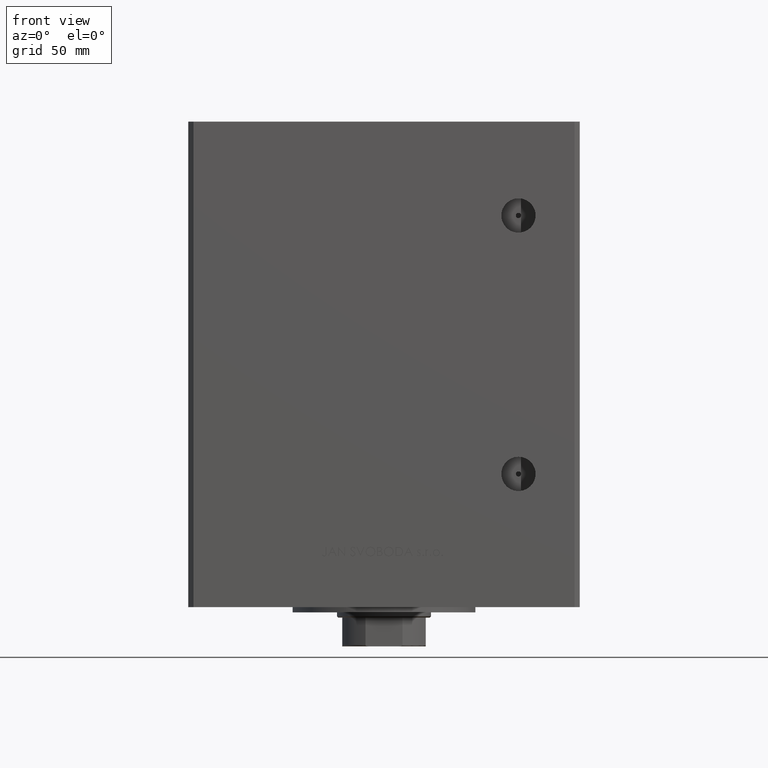
[diagram: clean part render]
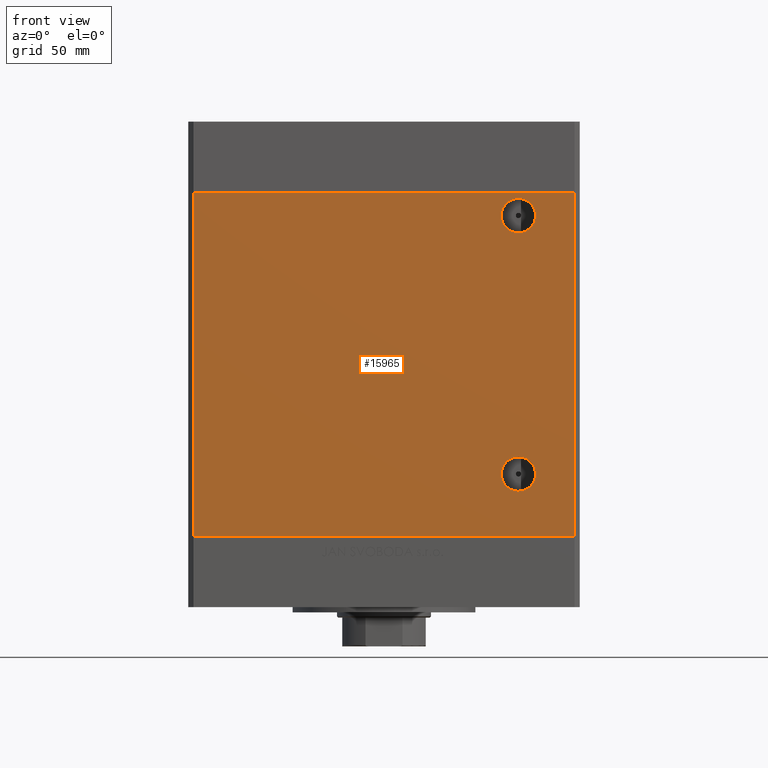
[diagram: same view with one face highlighted and labeled with its STEP entity id]
A machine part, front view. The second image highlights one B-rep face of the part: STEP entity #15965.
In plain terms, the highlighted planar face has unit normal (0, 1, 0).
Its self-contained STEP definition (entity closure, byte-faithful):
#225 = CARTESIAN_POINT ( 'NONE',  ( -72.99999999999998579, -62.50000000000000000, 0.000000000000000000 ) ) ;
#568 = DIRECTION ( 'NONE',  ( 0.000000000000000000, 0.000000000000000000, -1.000000000000000000 ) ) ;
#744 = AXIS2_PLACEMENT_3D ( 'NONE', #29059, #25262, #25507 ) ;
#2006 = DIRECTION ( 'NONE',  ( 0.000000000000000000, 0.000000000000000000, -1.000000000000000000 ) ) ;
#2589 = EDGE_CURVE ( 'NONE', #16258, #22387, #14545, .T. ) ;
#2895 = FACE_BOUND ( 'NONE', #22613, .T. ) ;
#3523 = EDGE_CURVE ( 'NONE', #20284, #35627, #42421, .T. ) ;
#3588 = ORIENTED_EDGE ( 'NONE', *, *, #50003, .F. ) ;
#4796 = ORIENTED_EDGE ( 'NONE', *, *, #19103, .T. ) ;
#5425 = CARTESIAN_POINT ( 'NONE',  ( 51.49999999999998579, -62.50000000000000000, 30.57999999999998764 ) ) ;
#7691 = EDGE_CURVE ( 'NONE', #43240, #35627, #31557, .T. ) ;
#8179 = DIRECTION ( 'NONE',  ( 0.000000000000000000, 0.000000000000000000, -1.000000000000000000 ) ) ;
#8389 = DIRECTION ( 'NONE',  ( -0.000000000000000000, -0.000000000000000000, -1.000000000000000000 ) ) ;
#8433 = CARTESIAN_POINT ( 'NONE',  ( 72.99999999999998579, -62.50000000000000000, 132.0000000000000000 ) ) ;
#8459 = LINE ( 'NONE', #20174, #36087 ) ;
#9283 = CARTESIAN_POINT ( 'NONE',  ( -72.99999999999998579, -62.50000000000000000, 0.000000000000000000 ) ) ;
#10025 = FACE_OUTER_BOUND ( 'NONE', #12039, .T. ) ;
#10549 = CARTESIAN_POINT ( 'NONE',  ( -72.99999999999998579, -62.50000000000000000, 132.0000000000000000 ) ) ;
#12039 = EDGE_LOOP ( 'NONE', ( #17403, #19470, #17461, #4796 ) ) ;
#12224 = CARTESIAN_POINT ( 'NONE',  ( 72.99999999999998579, -62.50000000000000000, 132.0000000000000000 ) ) ;
#12639 = EDGE_CURVE ( 'NONE', #22387, #16258, #25314, .T. ) ;
#14545 = CIRCLE ( 'NONE', #49454, 6.580000000000002736 ) ;
#15965 = ADVANCED_FACE ( 'NONE', ( #2895, #10025, #32931 ), #48424, .F. ) ;
#16194 = EDGE_CURVE ( 'NONE', #44417, #43240, #8459, .T. ) ;
#16258 = VERTEX_POINT ( 'NONE', #17859 ) ;
#17403 = ORIENTED_EDGE ( 'NONE', *, *, #3523, .T. ) ;
#17461 = ORIENTED_EDGE ( 'NONE', *, *, #16194, .F. ) ;
#17859 = CARTESIAN_POINT ( 'NONE',  ( 51.49999999999997158, -62.50000000000000000, 129.5800000000000125 ) ) ;
#18263 = VERTEX_POINT ( 'NONE', #41004 ) ;
#18416 = DIRECTION ( 'NONE',  ( 0.000000000000000000, -0.000000000000000000, 1.000000000000000000 ) ) ;
#18774 = CARTESIAN_POINT ( 'NONE',  ( 72.99999999999998579, -62.50000000000000000, 0.000000000000000000 ) ) ;
#19103 = EDGE_CURVE ( 'NONE', #44417, #20284, #24828, .T. ) ;
#19303 = EDGE_CURVE ( 'NONE', #18263, #45900, #29531, .T. ) ;
#19470 = ORIENTED_EDGE ( 'NONE', *, *, #7691, .F. ) ;
#19642 = DIRECTION ( 'NONE',  ( -0.000000000000000000, 1.000000000000000000, -0.000000000000000000 ) ) ;
#20097 = ORIENTED_EDGE ( 'NONE', *, *, #2589, .T. ) ;
#20174 = CARTESIAN_POINT ( 'NONE',  ( -72.99999999999998579, -62.50000000000000000, 132.0000000000000000 ) ) ;
#20284 = VERTEX_POINT ( 'NONE', #225 ) ;
#21852 = CIRCLE ( 'NONE', #744, 6.579999999999995630 ) ;
#22387 = VERTEX_POINT ( 'NONE', #47516 ) ;
#22613 = EDGE_LOOP ( 'NONE', ( #31490, #3588 ) ) ;
#23103 = DIRECTION ( 'NONE',  ( 1.000000000000000000, 0.000000000000000000, 0.000000000000000000 ) ) ;
#23461 = DIRECTION ( 'NONE',  ( 0.000000000000000000, -1.000000000000000000, 0.000000000000000000 ) ) ;
#23986 = DIRECTION ( 'NONE',  ( 1.000000000000000000, 0.000000000000000000, 0.000000000000000000 ) ) ;
#24828 = LINE ( 'NONE', #39337, #33624 ) ;
#25262 = DIRECTION ( 'NONE',  ( 0.000000000000000000, -1.000000000000000000, 0.000000000000000000 ) ) ;
#25314 = CIRCLE ( 'NONE', #30986, 6.580000000000002736 ) ;
#25505 = AXIS2_PLACEMENT_3D ( 'NONE', #10549, #25548, #18416 ) ;
#25507 = DIRECTION ( 'NONE',  ( 0.000000000000000000, 0.000000000000000000, -1.000000000000000000 ) ) ;
#25548 = DIRECTION ( 'NONE',  ( 0.000000000000000000, 1.000000000000000000, 0.000000000000000000 ) ) ;
#26647 = EDGE_LOOP ( 'NONE', ( #28025, #20097 ) ) ;
#28025 = ORIENTED_EDGE ( 'NONE', *, *, #12639, .T. ) ;
#29059 = CARTESIAN_POINT ( 'NONE',  ( 51.49999999999998579, -62.50000000000000000, 23.99999999999999289 ) ) ;
#29531 = CIRCLE ( 'NONE', #38500, 6.579999999999995630 ) ;
#30808 = VECTOR ( 'NONE', #23103, 1000.000000000000000 ) ;
#30986 = AXIS2_PLACEMENT_3D ( 'NONE', #39725, #19642, #568 ) ;
#31462 = DIRECTION ( 'NONE',  ( -0.000000000000000000, -0.000000000000000000, -1.000000000000000000 ) ) ;
#31490 = ORIENTED_EDGE ( 'NONE', *, *, #19303, .F. ) ;
#31557 = LINE ( 'NONE', #12224, #45453 ) ;
#31857 = CARTESIAN_POINT ( 'NONE',  ( 51.49999999999998579, -62.50000000000000000, 23.99999999999999289 ) ) ;
#32931 = FACE_BOUND ( 'NONE', #26647, .T. ) ;
#33624 = VECTOR ( 'NONE', #31462, 1000.000000000000000 ) ;
#35627 = VERTEX_POINT ( 'NONE', #18774 ) ;
#36087 = VECTOR ( 'NONE', #23986, 1000.000000000000000 ) ;
#38500 = AXIS2_PLACEMENT_3D ( 'NONE', #31857, #23461, #8179 ) ;
#39337 = CARTESIAN_POINT ( 'NONE',  ( -72.99999999999998579, -62.50000000000000000, 132.0000000000000000 ) ) ;
#39725 = CARTESIAN_POINT ( 'NONE',  ( 51.49999999999997158, -62.50000000000000000, 123.0000000000000000 ) ) ;
#41004 = CARTESIAN_POINT ( 'NONE',  ( 51.49999999999998579, -62.50000000000000000, 17.41999999999999815 ) ) ;
#42421 = LINE ( 'NONE', #9283, #30808 ) ;
#43240 = VERTEX_POINT ( 'NONE', #8433 ) ;
#44417 = VERTEX_POINT ( 'NONE', #44441 ) ;
#44441 = CARTESIAN_POINT ( 'NONE',  ( -72.99999999999998579, -62.50000000000000000, 132.0000000000000000 ) ) ;
#44730 = CARTESIAN_POINT ( 'NONE',  ( 51.49999999999997158, -62.50000000000000000, 123.0000000000000000 ) ) ;
#45453 = VECTOR ( 'NONE', #8389, 1000.000000000000000 ) ;
#45900 = VERTEX_POINT ( 'NONE', #5425 ) ;
#47516 = CARTESIAN_POINT ( 'NONE',  ( 51.49999999999997158, -62.50000000000000000, 116.4200000000000017 ) ) ;
#48049 = DIRECTION ( 'NONE',  ( -0.000000000000000000, 1.000000000000000000, -0.000000000000000000 ) ) ;
#48424 = PLANE ( 'NONE',  #25505 ) ;
#49454 = AXIS2_PLACEMENT_3D ( 'NONE', #44730, #48049, #2006 ) ;
#50003 = EDGE_CURVE ( 'NONE', #45900, #18263, #21852, .T. ) ;